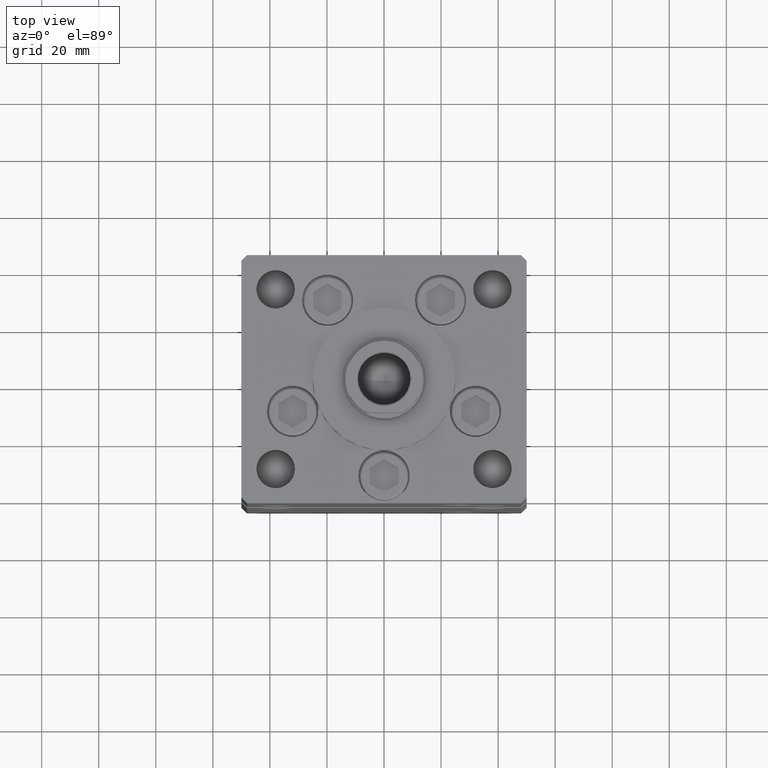
[diagram: clean part render]
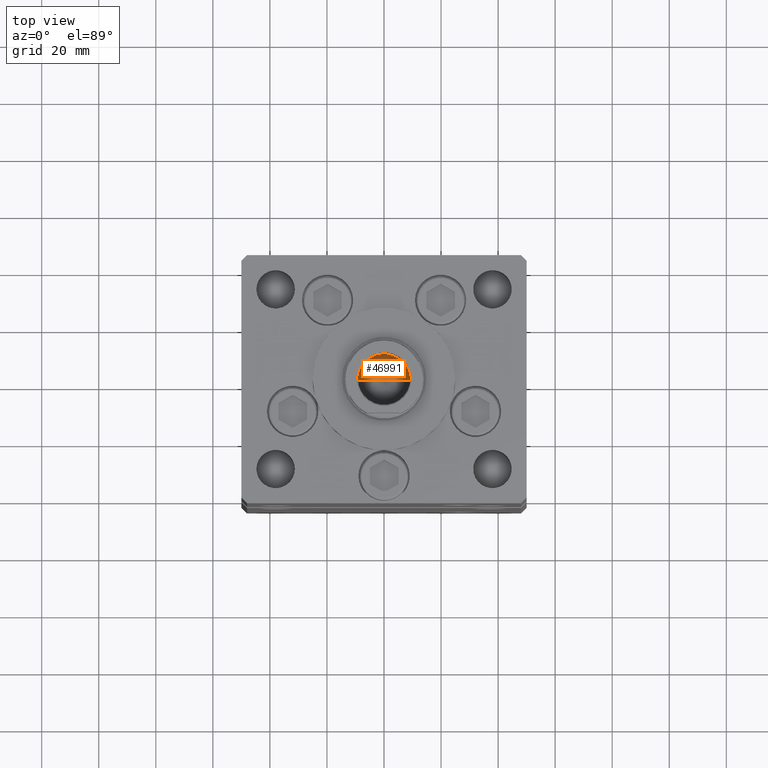
[diagram: same view with one face highlighted and labeled with its STEP entity id]
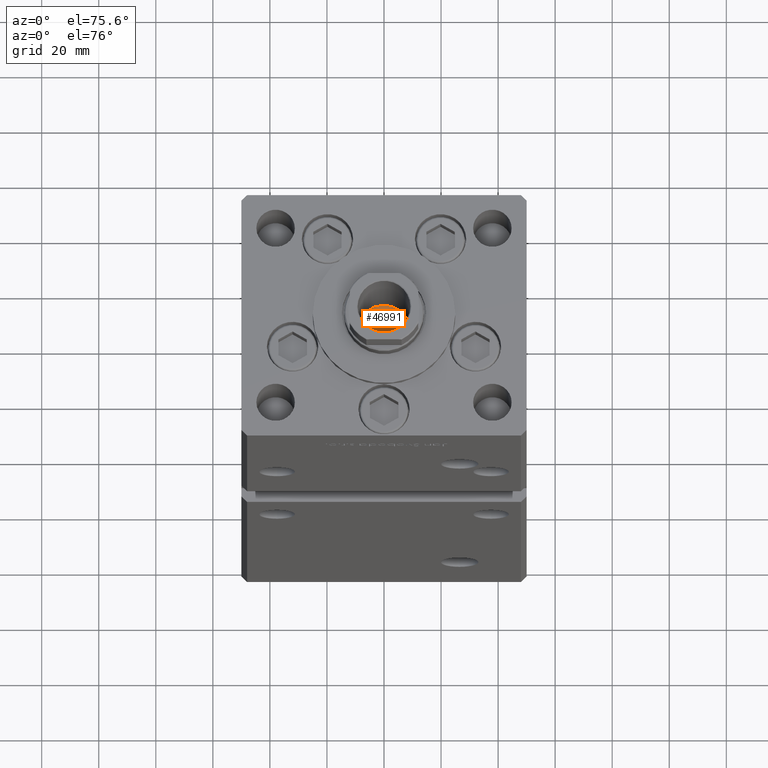
[diagram: same view with one face highlighted and labeled with its STEP entity id]
A machine part, top view. The second image highlights one B-rep face of the part: STEP entity #46991.
A second angle (auxiliary view) of the same face is appended — the face is thin or edge-on in the first view.
In plain terms, the highlighted conical surface has half-angle 59 deg.
Its self-contained STEP definition (entity closure, byte-faithful):
#947 = FACE_OUTER_BOUND ( 'NONE', #22838, .T. ) ;
#2780 = CARTESIAN_POINT ( 'NONE',  ( 0.000000000000000000, 0.000000000000000000, 150.2500000000000000 ) ) ;
#8971 = EDGE_CURVE ( 'NONE', #27281, #44396, #40219, .T. ) ;
#11100 = EDGE_CURVE ( 'NONE', #12587, #27281, #21910, .T. ) ;
#12587 = VERTEX_POINT ( 'NONE', #36862 ) ;
#13930 = CARTESIAN_POINT ( 'NONE',  ( -9.249999999999994671, 1.132798289211300909E-15, 150.2500000000000000 ) ) ;
#15406 = ORIENTED_EDGE ( 'NONE', *, *, #11100, .T. ) ;
#17626 = DIRECTION ( 'NONE',  ( 1.000000000000000000, 0.000000000000000000, 0.000000000000000000 ) ) ;
#19446 = DIRECTION ( 'NONE',  ( -0.000000000000000000, -0.000000000000000000, 1.000000000000000000 ) ) ;
#21638 = CARTESIAN_POINT ( 'NONE',  ( 9.249999999999994671, 0.000000000000000000, 150.2500000000000000 ) ) ;
#21910 = LINE ( 'NONE', #34514, #50617 ) ;
#22838 = EDGE_LOOP ( 'NONE', ( #23988, #15406, #34313 ) ) ;
#23988 = ORIENTED_EDGE ( 'NONE', *, *, #33567, .F. ) ;
#24880 = DIRECTION ( 'NONE',  ( -0.000000000000000000, -0.000000000000000000, 1.000000000000000000 ) ) ;
#26857 = CONICAL_SURFACE ( 'NONE', #38822, 9.249999999999994671, 1.029744258676652313 ) ;
#27281 = VERTEX_POINT ( 'NONE', #21638 ) ;
#30326 = DIRECTION ( 'NONE',  ( -0.8571673007021112234, 1.049727191138617340E-16, 0.5150380749100560429 ) ) ;
#30821 = AXIS2_PLACEMENT_3D ( 'NONE', #2780, #19446, #43360 ) ;
#33567 = EDGE_CURVE ( 'NONE', #12587, #44396, #34344, .T. ) ;
#34313 = ORIENTED_EDGE ( 'NONE', *, *, #8971, .T. ) ;
#34344 = LINE ( 'NONE', #13930, #47190 ) ;
#34514 = CARTESIAN_POINT ( 'NONE',  ( 9.249999999999994671, 0.000000000000000000, 150.2500000000000000 ) ) ;
#36862 = CARTESIAN_POINT ( 'NONE',  ( -1.046994375366439223E-14, 0.000000000000000000, 144.6920392739950501 ) ) ;
#38822 = AXIS2_PLACEMENT_3D ( 'NONE', #45269, #24880, #17626 ) ;
#40219 = CIRCLE ( 'NONE', #30821, 9.249999999999994671 ) ;
#43360 = DIRECTION ( 'NONE',  ( 1.000000000000000000, 0.000000000000000000, 0.000000000000000000 ) ) ;
#44396 = VERTEX_POINT ( 'NONE', #48678 ) ;
#45269 = CARTESIAN_POINT ( 'NONE',  ( 0.000000000000000000, 0.000000000000000000, 150.2500000000000000 ) ) ;
#46991 = ADVANCED_FACE ( 'NONE', ( #947 ), #26857, .F. ) ;
#47190 = VECTOR ( 'NONE', #30326, 1000.000000000000000 ) ;
#48678 = CARTESIAN_POINT ( 'NONE',  ( -9.249999999999994671, 1.132798289211300909E-15, 150.2500000000000000 ) ) ;
#50617 = VECTOR ( 'NONE', #51464, 1000.000000000000000 ) ;
#51464 = DIRECTION ( 'NONE',  ( 0.8571673007021112234, 0.000000000000000000, 0.5150380749100560429 ) ) ;